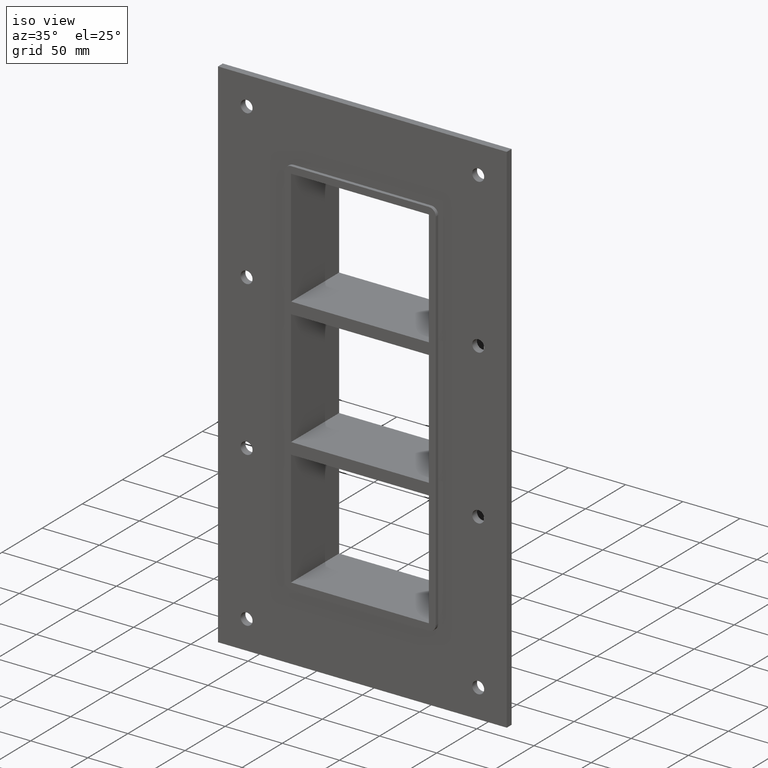
[diagram: clean part render]
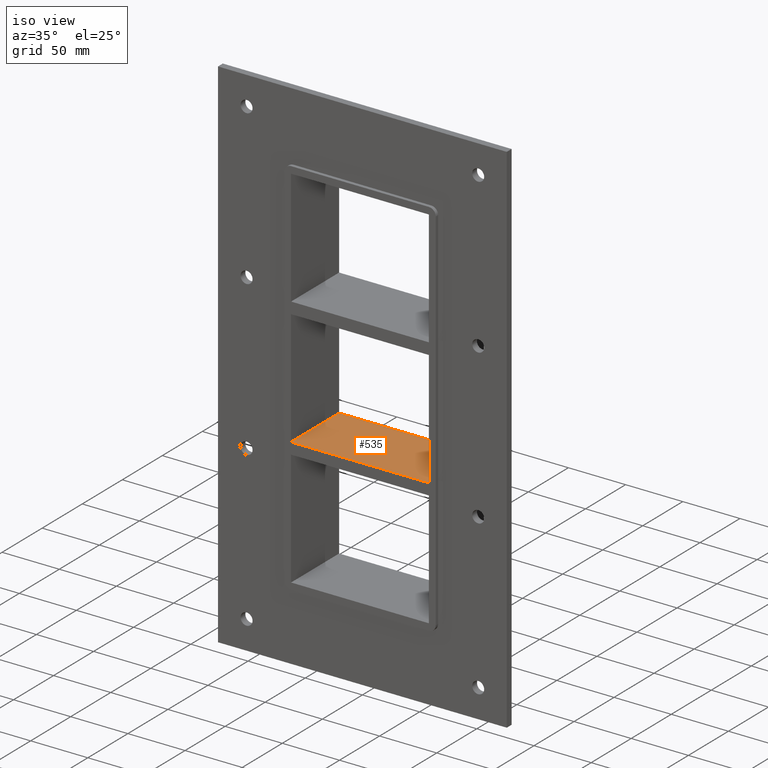
[diagram: same view with one face highlighted and labeled with its STEP entity id]
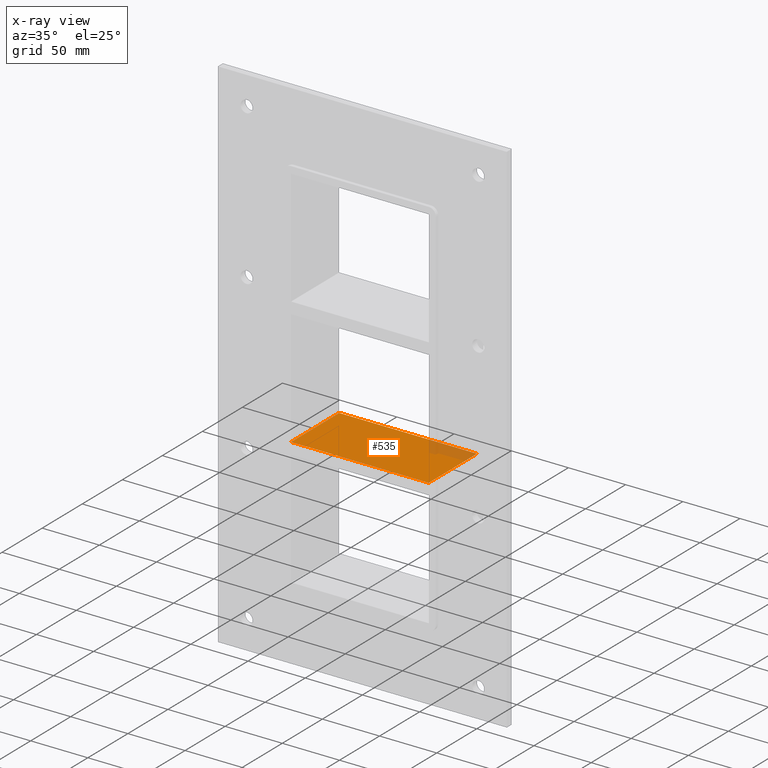
[diagram: x-ray of the same camera — body ghosted, the highlighted face saturated]
A machine part, iso view. The second image highlights one B-rep face of the part: STEP entity #535.
The next image is the same camera in x-ray: the body ghosted, the highlighted face saturated — about 8% of this face is hidden behind the body in this view.
In plain terms, the highlighted planar face has unit normal (0, 0, 1).
Its self-contained STEP definition (entity closure, byte-faithful):
#409=CARTESIAN_POINT('',(60.249999999999027,57.0,-50.499999999999545));
#410=VERTEX_POINT('',#409);
#417=CARTESIAN_POINT('',(60.249999999999027,-3.0,-50.499999999999545));
#418=VERTEX_POINT('',#417);
#419=CARTESIAN_POINT('',(60.249999999999986,57.000000000000007,-50.499999999999545));
#420=DIRECTION('',(0.0,-1.0,0.0));
#421=VECTOR('',#420,60.000000000000007);
#422=LINE('',#419,#421);
#423=EDGE_CURVE('',#410,#418,#422,.T.);
#505=CARTESIAN_POINT('',(-60.249999999997058,-3.0,-50.499999999999545));
#506=DIRECTION('',(0.0,0.0,1.0));
#507=DIRECTION('',(1.0,0.0,0.0));
#508=AXIS2_PLACEMENT_3D('',#505,#506,#507);
#509=PLANE('',#508);
#510=CARTESIAN_POINT('',(-60.249999999997058,-3.0,-50.499999999999545));
#511=VERTEX_POINT('',#510);
#512=CARTESIAN_POINT('',(-60.249999999997058,-3.0,-50.499999999999545));
#513=DIRECTION('',(1.0,0.0,0.0));
#514=VECTOR('',#513,120.49999999999608);
#515=LINE('',#512,#514);
#516=EDGE_CURVE('',#511,#418,#515,.T.);
#517=ORIENTED_EDGE('',*,*,#516,.T.);
#518=ORIENTED_EDGE('',*,*,#423,.F.);
#519=CARTESIAN_POINT('',(-60.249999999997058,57.0,-50.499999999999545));
#520=VERTEX_POINT('',#519);
#521=CARTESIAN_POINT('',(-60.249999999997058,57.0,-50.499999999999545));
#522=DIRECTION('',(1.0,0.0,0.0));
#523=VECTOR('',#522,120.49999999999608);
#524=LINE('',#521,#523);
#525=EDGE_CURVE('',#520,#410,#524,.T.);
#526=ORIENTED_EDGE('',*,*,#525,.F.);
#527=CARTESIAN_POINT('',(-60.249999999999986,-3.0,-50.499999999999545));
#528=DIRECTION('',(0.0,1.0,0.0));
#529=VECTOR('',#528,60.000000000000007);
#530=LINE('',#527,#529);
#531=EDGE_CURVE('',#511,#520,#530,.T.);
#532=ORIENTED_EDGE('',*,*,#531,.F.);
#533=EDGE_LOOP('',(#517,#518,#526,#532));
#534=FACE_OUTER_BOUND('',#533,.T.);
#535=ADVANCED_FACE('',(#534),#509,.T.);